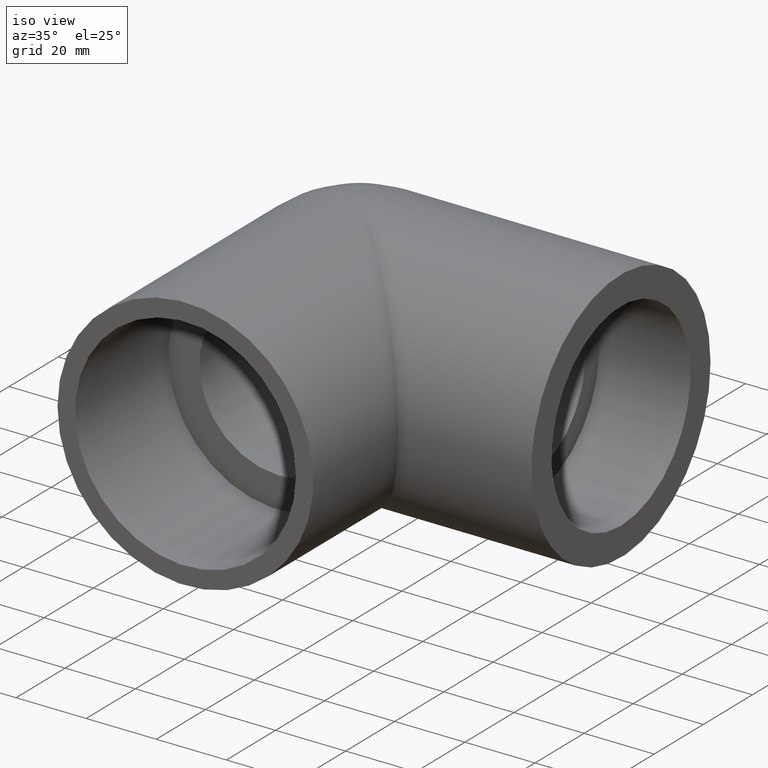
[diagram: clean part render]
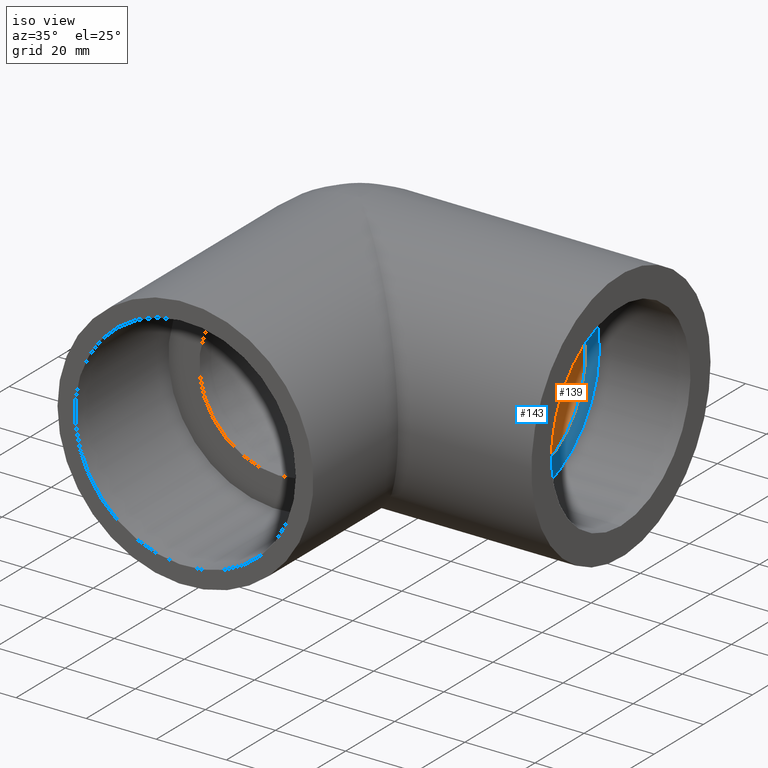
[diagram: same view with the hole feature highlighted: cylindrical wall and planar end face, labeled with their STEP entity ids]
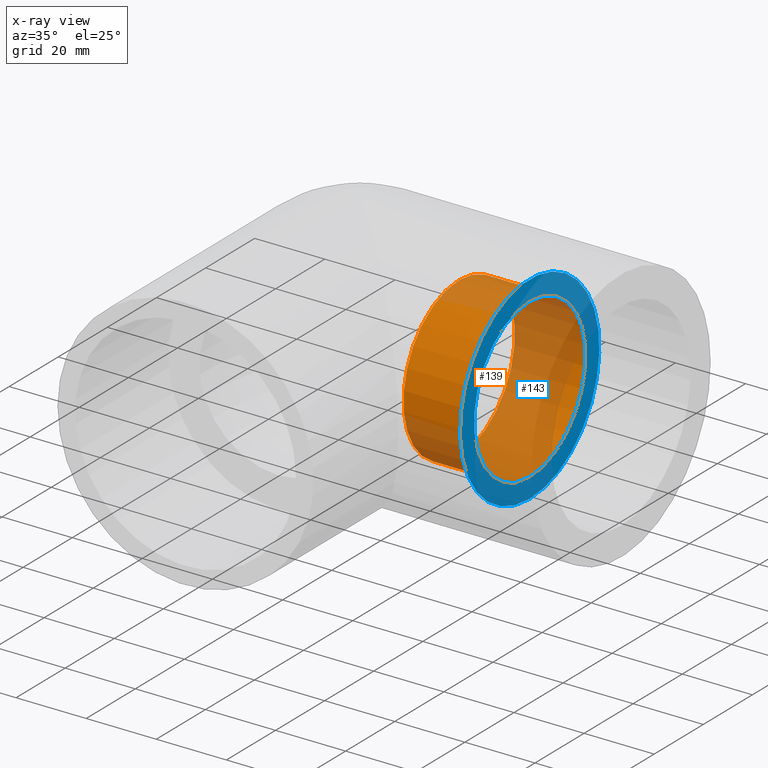
[diagram: x-ray of the same camera — body ghosted, the hole faces saturated]
A machine part, iso view. The highlighted faces form one hole feature of diameter 45.3248 mm: the cylindrical wall (entity #139, orange) and its adjacent planar end face (entity #143, blue) — they share a circular edge in the B-rep.
The next image is the same camera in x-ray (body ghosted, the hole faces saturated) — the bore reads through the body.
Wall:
#24=FACE_BOUND('',#50,.T.);
#35=FACE_OUTER_BOUND('',#49,.T.);
#49=EDGE_LOOP('',(#109));
#50=EDGE_LOOP('',(#110));
#70=CIRCLE('',#155,22.6624);
#71=CIRCLE('',#157,22.6624);
#82=VERTEX_POINT('',#235);
#83=VERTEX_POINT('',#238);
#94=EDGE_CURVE('',#82,#82,#70,.T.);
#95=EDGE_CURVE('',#83,#83,#71,.T.);
#109=ORIENTED_EDGE('',*,*,#94,.T.);
#110=ORIENTED_EDGE('',*,*,#95,.F.);
#132=CYLINDRICAL_SURFACE('',#156,22.6624);
#139=ADVANCED_FACE('',(#35,#24),#132,.F.);
#155=AXIS2_PLACEMENT_3D('',#236,#186,#187);
#156=AXIS2_PLACEMENT_3D('',#237,#188,#189);
#157=AXIS2_PLACEMENT_3D('',#239,#190,#191);
#186=DIRECTION('center_axis',(-1.,0.,0.));
#187=DIRECTION('ref_axis',(0.,0.,1.));
#188=DIRECTION('center_axis',(-1.,-2.20514271124299E-16,0.));
#189=DIRECTION('ref_axis',(0.,0.,1.));
#190=DIRECTION('center_axis',(-1.,0.,0.));
#191=DIRECTION('ref_axis',(0.,0.,1.));
#235=CARTESIAN_POINT('',(28.328,-1.67287031501967E-15,-22.6624));
#236=CARTESIAN_POINT('Origin',(28.328,-4.44821387711936E-15,0.));
#237=CARTESIAN_POINT('Origin',(48.5,0.,0.));
#238=CARTESIAN_POINT('',(48.5,2.7753435620997E-15,-22.6624));
#239=CARTESIAN_POINT('Origin',(48.5,0.,0.));
End face:
#18=PLANE('',#165);
#28=FACE_BOUND('',#58,.T.);
#39=FACE_OUTER_BOUND('',#57,.T.);
#57=EDGE_LOOP('',(#117));
#58=EDGE_LOOP('',(#118));
#71=CIRCLE('',#157,22.6624);
#74=CIRCLE('',#163,28.328);
#83=VERTEX_POINT('',#238);
#86=VERTEX_POINT('',#247);
#95=EDGE_CURVE('',#83,#83,#71,.T.);
#98=EDGE_CURVE('',#86,#86,#74,.T.);
#117=ORIENTED_EDGE('',*,*,#98,.F.);
#118=ORIENTED_EDGE('',*,*,#95,.T.);
#143=ADVANCED_FACE('',(#39,#28),#18,.T.);
#157=AXIS2_PLACEMENT_3D('',#239,#190,#191);
#163=AXIS2_PLACEMENT_3D('',#248,#202,#203);
#165=AXIS2_PLACEMENT_3D('',#251,#206,#207);
#190=DIRECTION('center_axis',(-1.,0.,0.));
#191=DIRECTION('ref_axis',(0.,0.,1.));
#202=DIRECTION('center_axis',(-1.,0.,0.));
#203=DIRECTION('ref_axis',(0.,0.,1.));
#206=DIRECTION('center_axis',(1.,0.,0.));
#207=DIRECTION('ref_axis',(0.,0.,-1.));
#238=CARTESIAN_POINT('',(48.5,2.7753435620997E-15,-22.6624));
#239=CARTESIAN_POINT('Origin',(48.5,0.,0.));
#247=CARTESIAN_POINT('',(48.5,3.46917945262462E-15,-28.328));
#248=CARTESIAN_POINT('Origin',(48.5,0.,0.));
#251=CARTESIAN_POINT('Origin',(48.5,0.,2.37932331760699E-15));